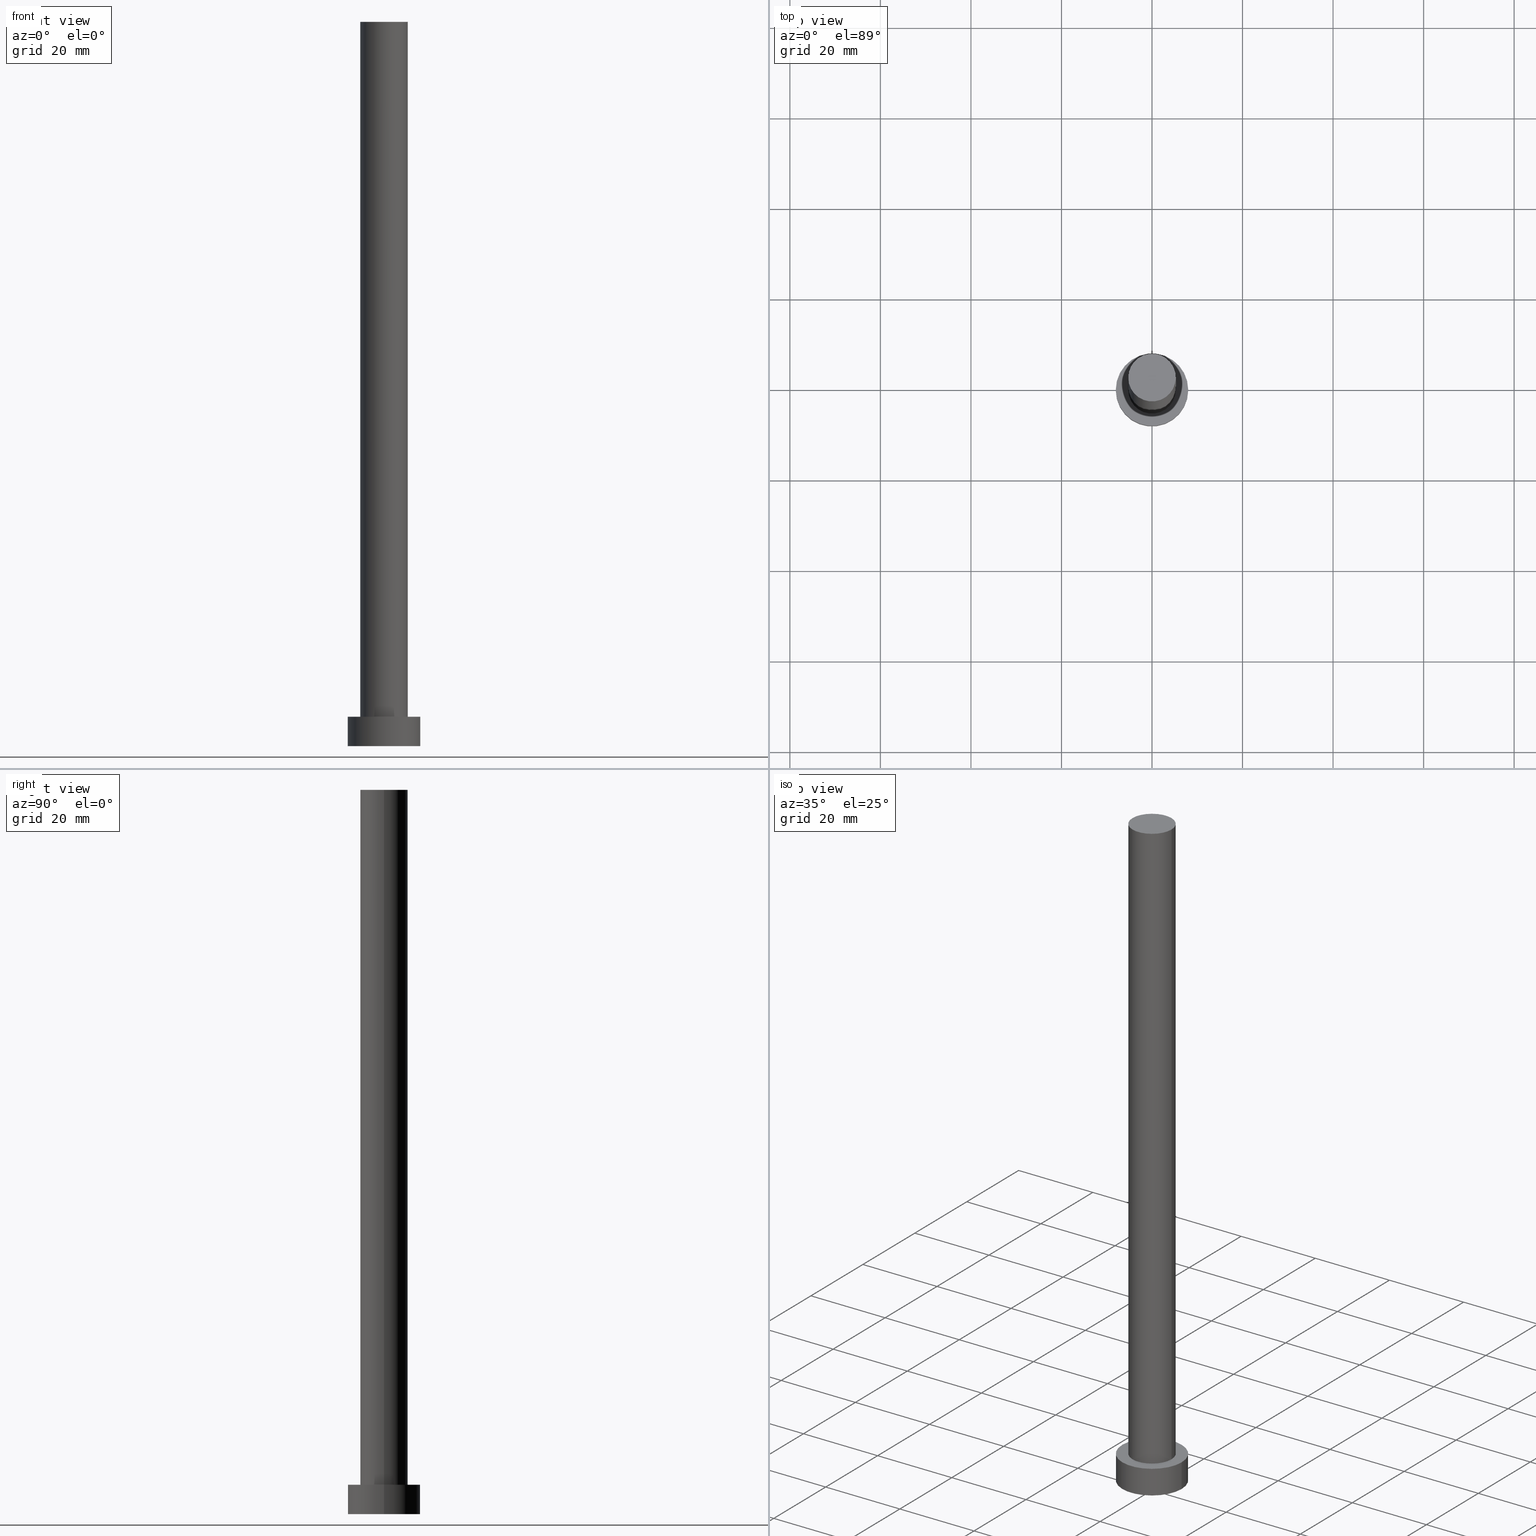
[diagram: canonical four-view strip — front | top / right | iso, engineering-drawing reading convention]
A machine part, canonical four-view strip (front | top / right | iso — engineering-drawing reading convention). The complete STEP part file that produces these views, byte-faithful:
ISO-10303-21;
HEADER;
FILE_DESCRIPTION (( 'STEP AP203' ),
    '1' );
FILE_NAME ('e3c2.STEP',
    '2023-02-13T12:22:39',
    ( '' ),
    ( '' ),
    'SwSTEP 2.0',
    'SolidWorks 2019',
    '' );
FILE_SCHEMA (( 'CONFIG_CONTROL_DESIGN' ));
ENDSEC;

DATA;
#1 = DATE_AND_TIME ( #236, #255 ) ;
#2 = CARTESIAN_POINT ( 'NONE',  ( 0.000000000000000000, 0.000000000000000000, 160.0000000000000000 ) ) ;
#3 = EDGE_CURVE ( 'NONE', #242, #116, #157, .T. ) ;
#4 = PERSON_AND_ORGANIZATION ( #52, #156 ) ;
#5 = DIRECTION ( 'NONE',  ( -0.000000000000000000, -0.000000000000000000, -1.000000000000000000 ) ) ;
#6 = DIRECTION ( 'NONE',  ( 1.000000000000000000, 0.000000000000000000, 0.000000000000000000 ) ) ;
#7 = PERSON_AND_ORGANIZATION ( #52, #156 ) ;
#8 = DIRECTION ( 'NONE',  ( 0.000000000000000000, 0.000000000000000000, 1.000000000000000000 ) ) ;
#9 = PRODUCT_DEFINITION ( 'NEZN�M�', '', #59, #121 ) ;
#10 = COORDINATED_UNIVERSAL_TIME_OFFSET ( 1, 0, .AHEAD. ) ;
#11 = CARTESIAN_POINT ( 'NONE',  ( -8.000000000000000000, 0.000000000000000000, 0.000000000000000000 ) ) ;
#12 = VERTEX_POINT ( 'NONE', #17 ) ;
#13 = DIRECTION ( 'NONE',  ( 0.000000000000000000, 0.000000000000000000, 1.000000000000000000 ) ) ;
#14 = AXIS2_PLACEMENT_3D ( 'NONE', #227, #66, #53 ) ;
#15 = COORDINATED_UNIVERSAL_TIME_OFFSET ( 1, 0, .AHEAD. ) ;
#16 = AXIS2_PLACEMENT_3D ( 'NONE', #94, #113, #106 ) ;
#17 = CARTESIAN_POINT ( 'NONE',  ( 5.250000000000000888, 6.429395695523605139E-16, 6.500000000000000000 ) ) ;
#18 = CARTESIAN_POINT ( 'NONE',  ( 0.000000000000000000, 0.000000000000000000, 160.0000000000000000 ) ) ;
#19 = VERTEX_POINT ( 'NONE', #120 ) ;
#20 = EDGE_CURVE ( 'NONE', #12, #144, #109, .T. ) ;
#21 = DIRECTION ( 'NONE',  ( 0.000000000000000000, 0.000000000000000000, 1.000000000000000000 ) ) ;
#22 = DATE_TIME_ROLE ( 'creation_date' ) ;
#23 = CARTESIAN_POINT ( 'NONE',  ( 8.000000000000000000, 9.797174393178823685E-16, 6.500000000000000000 ) ) ;
#24 = FACE_OUTER_BOUND ( 'NONE', #208, .T. ) ;
#25 = COORDINATED_UNIVERSAL_TIME_OFFSET ( 1, 0, .AHEAD. ) ;
#26 = AXIS2_PLACEMENT_3D ( 'NONE', #201, #27, #104 ) ;
#27 = DIRECTION ( 'NONE',  ( 0.000000000000000000, 0.000000000000000000, 1.000000000000000000 ) ) ;
#28 = ORIENTED_EDGE ( 'NONE', *, *, #211, .T. ) ;
#29 = AXIS2_PLACEMENT_3D ( 'NONE', #2, #99, #39 ) ;
#30 = PERSON_AND_ORGANIZATION ( #52, #156 ) ;
#31 = CC_DESIGN_PERSON_AND_ORGANIZATION_ASSIGNMENT ( #87, #203, ( #59 ) ) ;
#32 = AXIS2_PLACEMENT_3D ( 'NONE', #232, #137, #125 ) ;
#33 = CARTESIAN_POINT ( 'NONE',  ( 0.000000000000000000, 0.000000000000000000, 6.500000000000000000 ) ) ;
#34 = DATE_AND_TIME ( #250, #230 ) ;
#35 = ADVANCED_FACE ( 'NONE', ( #24 ), #179, .T. ) ;
#36 = APPROVAL_PERSON_ORGANIZATION ( #233, #129, #158 ) ;
#37 = ORIENTED_EDGE ( 'NONE', *, *, #220, .T. ) ;
#38 = ORIENTED_EDGE ( 'NONE', *, *, #225, .F. ) ;
#39 = DIRECTION ( 'NONE',  ( -1.000000000000000000, 0.000000000000000000, 0.000000000000000000 ) ) ;
#40 = CARTESIAN_POINT ( 'NONE',  ( 0.000000000000000000, 0.000000000000000000, 6.500000000000000000 ) ) ;
#41 = PRODUCT_RELATED_PRODUCT_CATEGORY ( 'detail', '', ( #199 ) ) ;
#42 = AXIS2_PLACEMENT_3D ( 'NONE', #183, #8, #79 ) ;
#43 = CARTESIAN_POINT ( 'NONE',  ( -5.250000000000000888, 0.000000000000000000, 6.500000000000000000 ) ) ;
#44 = CYLINDRICAL_SURFACE ( 'NONE', #32, 8.000000000000000000 ) ;
#45 = DIRECTION ( 'NONE',  ( 0.000000000000000000, 0.000000000000000000, 1.000000000000000000 ) ) ;
#46 = PERSON_AND_ORGANIZATION ( #52, #156 ) ;
#47 = DIRECTION ( 'NONE',  ( 1.000000000000000000, 0.000000000000000000, 0.000000000000000000 ) ) ;
#48 = EDGE_CURVE ( 'NONE', #242, #172, #197, .T. ) ;
#49 = AXIS2_PLACEMENT_3D ( 'NONE', #240, #64, #226 ) ;
#50 = AXIS2_PLACEMENT_3D ( 'NONE', #80, #136, #6 ) ;
#51 = ADVANCED_FACE ( 'NONE', ( #82 ), #196, .F. ) ;
#52 = PERSON ( 'NEUR�EN�', 'NEUR�EN�', 'NEUR�EN�', ('NEUR�EN�'), ('NEUR�EN�'), ('NEUR�EN�') ) ;
#53 = DIRECTION ( 'NONE',  ( 1.000000000000000000, 0.000000000000000000, -0.000000000000000000 ) ) ;
#54 = EDGE_LOOP ( 'NONE', ( #38, #246 ) ) ;
#55 = CARTESIAN_POINT ( 'NONE',  ( -8.000000000000000000, 0.000000000000000000, 6.500000000000000000 ) ) ;
#56 = ORIENTED_EDGE ( 'NONE', *, *, #151, .T. ) ;
#57 = ORIENTED_EDGE ( 'NONE', *, *, #48, .F. ) ;
#58 = FACE_OUTER_BOUND ( 'NONE', #74, .T. ) ;
#59 = PRODUCT_DEFINITION_FORMATION_WITH_SPECIFIED_SOURCE ( 'LIBOVOLN�', '', #199, .NOT_KNOWN. ) ;
#60 = APPROVAL_PERSON_ORGANIZATION ( #4, #165, #62 ) ;
#61 = CARTESIAN_POINT ( 'NONE',  ( 0.000000000000000000, 0.000000000000000000, 0.000000000000000000 ) ) ;
#62 = APPROVAL_ROLE ( '' ) ;
#63 = CARTESIAN_POINT ( 'NONE',  ( 8.000000000000000000, 9.797174393178823685E-16, 6.500000000000000000 ) ) ;
#64 = DIRECTION ( 'NONE',  ( 0.000000000000000000, 0.000000000000000000, 1.000000000000000000 ) ) ;
#65 = EDGE_CURVE ( 'NONE', #252, #172, #247, .T. ) ;
#66 = DIRECTION ( 'NONE',  ( 0.000000000000000000, 0.000000000000000000, 1.000000000000000000 ) ) ;
#67 = ORIENTED_EDGE ( 'NONE', *, *, #187, .T. ) ;
#68 = LOCAL_TIME ( 13, 22, 39.00000000000000000, #15 ) ;
#69 = AXIS2_PLACEMENT_3D ( 'NONE', #33, #111, #190 ) ;
#70 = APPROVAL_STATUS ( 'not_yet_approved' ) ;
#71 = LINE ( 'NONE', #63, #177 ) ;
#72 = ORIENTED_EDGE ( 'NONE', *, *, #48, .T. ) ;
#73 =( LENGTH_UNIT ( ) NAMED_UNIT ( * ) SI_UNIT ( .MILLI., .METRE. ) );
#74 = EDGE_LOOP ( 'NONE', ( #146, #67, #118, #57 ) ) ;
#75 = VECTOR ( 'NONE', #5, 1000.000000000000000 ) ;
#76 = APPROVAL ( #70, 'NEUR�EN�' ) ;
#77 = ORIENTED_EDGE ( 'NONE', *, *, #151, .F. ) ;
#78 =( NAMED_UNIT ( * ) SI_UNIT ( $, .STERADIAN. ) SOLID_ANGLE_UNIT ( ) );
#79 = DIRECTION ( 'NONE',  ( 1.000000000000000000, 0.000000000000000000, 0.000000000000000000 ) ) ;
#80 = CARTESIAN_POINT ( 'NONE',  ( 0.000000000000000000, 0.000000000000000000, 6.500000000000000000 ) ) ;
#81 = CALENDAR_DATE ( 2023, 13, 2 ) ;
#82 = FACE_OUTER_BOUND ( 'NONE', #54, .T. ) ;
#83 = SECURITY_CLASSIFICATION ( '', '', #103 ) ;
#84 = CARTESIAN_POINT ( 'NONE',  ( 5.250000000000000888, 6.429395695523605139E-16, 160.0000000000000000 ) ) ;
#85 = EDGE_CURVE ( 'NONE', #19, #12, #101, .T. ) ;
#86 = APPLICATION_CONTEXT ( 'configuration controlled 3d designs of mechanical parts and assemblies' ) ;
#87 = PERSON_AND_ORGANIZATION ( #52, #156 ) ;
#88 = COORDINATED_UNIVERSAL_TIME_OFFSET ( 1, 0, .AHEAD. ) ;
#89 = CC_DESIGN_DATE_AND_TIME_ASSIGNMENT ( #34, #191, ( #83 ) ) ;
#90 = DIRECTION ( 'NONE',  ( -0.000000000000000000, -0.000000000000000000, -1.000000000000000000 ) ) ;
#91 = AXIS2_PLACEMENT_3D ( 'NONE', #175, #237, #231 ) ;
#92 = PERSON_AND_ORGANIZATION ( #52, #156 ) ;
#93 = AXIS2_PLACEMENT_3D ( 'NONE', #241, #13, #47 ) ;
#94 = CARTESIAN_POINT ( 'NONE',  ( 0.000000000000000000, 0.000000000000000000, 160.0000000000000000 ) ) ;
#95 = VERTEX_POINT ( 'NONE', #159 ) ;
#96 = DIRECTION ( 'NONE',  ( -0.000000000000000000, -0.000000000000000000, -1.000000000000000000 ) ) ;
#97 = LOCAL_TIME ( 13, 22, 39.00000000000000000, #88 ) ;
#98 = ORIENTED_EDGE ( 'NONE', *, *, #110, .T. ) ;
#99 = DIRECTION ( 'NONE',  ( -0.000000000000000000, -0.000000000000000000, -1.000000000000000000 ) ) ;
#100 = ADVANCED_FACE ( 'NONE', ( #58 ), #239, .T. ) ;
#101 = LINE ( 'NONE', #84, #169 ) ;
#102 = CIRCLE ( 'NONE', #245, 8.000000000000000000 ) ;
#103 = SECURITY_CLASSIFICATION_LEVEL ( 'unclassified' ) ;
#104 = DIRECTION ( 'NONE',  ( 1.000000000000000000, 0.000000000000000000, 0.000000000000000000 ) ) ;
#105 = PERSON_AND_ORGANIZATION_ROLE ( 'classification_officer' ) ;
#106 = DIRECTION ( 'NONE',  ( 1.000000000000000000, 0.000000000000000000, -0.000000000000000000 ) ) ;
#107 = CIRCLE ( 'NONE', #194, 5.250000000000000888 ) ;
#108 = DATE_AND_TIME ( #221, #68 ) ;
#109 = CIRCLE ( 'NONE', #50, 5.250000000000000888 ) ;
#110 = EDGE_CURVE ( 'NONE', #116, #242, #102, .T. ) ;
#111 = DIRECTION ( 'NONE',  ( 0.000000000000000000, 0.000000000000000000, 1.000000000000000000 ) ) ;
#112 =( GEOMETRIC_REPRESENTATION_CONTEXT ( 3 ) GLOBAL_UNCERTAINTY_ASSIGNED_CONTEXT ( ( #213 ) ) GLOBAL_UNIT_ASSIGNED_CONTEXT ( ( #73, #173, #78 ) ) REPRESENTATION_CONTEXT ( 'NONE', 'WORKASPACE' ) );
#113 = DIRECTION ( 'NONE',  ( 0.000000000000000000, 0.000000000000000000, 1.000000000000000000 ) ) ;
#114 = EDGE_LOOP ( 'NONE', ( #189, #166, #72, #161 ) ) ;
#115 = PRODUCT_DEFINITION_SHAPE ( 'NONE', 'NONE',  #9 ) ;
#116 = VERTEX_POINT ( 'NONE', #23 ) ;
#117 = CYLINDRICAL_SURFACE ( 'NONE', #139, 5.250000000000000888 ) ;
#118 = ORIENTED_EDGE ( 'NONE', *, *, #65, .T. ) ;
#119 = APPROVAL_PERSON_ORGANIZATION ( #92, #76, #168 ) ;
#120 = CARTESIAN_POINT ( 'NONE',  ( 5.250000000000000888, 6.429395695523605139E-16, 160.0000000000000000 ) ) ;
#121 = DESIGN_CONTEXT ( 'detailed design', #145, 'design' ) ;
#122 = PERSON_AND_ORGANIZATION_ROLE ( 'creator' ) ;
#123 = CARTESIAN_POINT ( 'NONE',  ( -5.250000000000000888, 0.000000000000000000, 160.0000000000000000 ) ) ;
#124 = CC_DESIGN_PERSON_AND_ORGANIZATION_ASSIGNMENT ( #140, #160, ( #9 ) ) ;
#125 = DIRECTION ( 'NONE',  ( -1.000000000000000000, 0.000000000000000000, 0.000000000000000000 ) ) ;
#126 = APPROVAL_DATE_TIME ( #238, #129 ) ;
#127 = DIRECTION ( 'NONE',  ( 1.000000000000000000, 0.000000000000000000, 0.000000000000000000 ) ) ;
#128 = APPLICATION_PROTOCOL_DEFINITION ( 'international standard', 'config_control_design', 1994, #145 ) ;
#129 = APPROVAL ( #180, 'NEUR�EN�' ) ;
#130 = CARTESIAN_POINT ( 'NONE',  ( 0.000000000000000000, 0.000000000000000000, 6.500000000000000000 ) ) ;
#131 = CC_DESIGN_SECURITY_CLASSIFICATION ( #83, ( #59 ) ) ;
#132 = ORIENTED_EDGE ( 'NONE', *, *, #220, .F. ) ;
#133 = EDGE_LOOP ( 'NONE', ( #150, #209 ) ) ;
#134 = CC_DESIGN_PERSON_AND_ORGANIZATION_ASSIGNMENT ( #30, #105, ( #83 ) ) ;
#135 = ADVANCED_FACE ( 'NONE', ( #200 ), #44, .T. ) ;
#136 = DIRECTION ( 'NONE',  ( 0.000000000000000000, 0.000000000000000000, 1.000000000000000000 ) ) ;
#137 = DIRECTION ( 'NONE',  ( -0.000000000000000000, -0.000000000000000000, -1.000000000000000000 ) ) ;
#138 = DIRECTION ( 'NONE',  ( -0.000000000000000000, -0.000000000000000000, -1.000000000000000000 ) ) ;
#139 = AXIS2_PLACEMENT_3D ( 'NONE', #18, #96, #174 ) ;
#140 = PERSON_AND_ORGANIZATION ( #52, #156 ) ;
#141 = DIRECTION ( 'NONE',  ( -1.000000000000000000, 0.000000000000000000, 0.000000000000000000 ) ) ;
#142 = COORDINATED_UNIVERSAL_TIME_OFFSET ( 1, 0, .AHEAD. ) ;
#143 = ORIENTED_EDGE ( 'NONE', *, *, #85, .T. ) ;
#144 = VERTEX_POINT ( 'NONE', #43 ) ;
#145 = APPLICATION_CONTEXT ( 'configuration controlled 3d designs of mechanical parts and assemblies' ) ;
#146 = ORIENTED_EDGE ( 'NONE', *, *, #110, .F. ) ;
#147 = PLANE ( 'NONE',  #14 ) ;
#148 = CLOSED_SHELL ( 'NONE', ( #35, #100, #135, #205, #51, #254, #170 ) ) ;
#149 = EDGE_LOOP ( 'NONE', ( #207, #171, #56, #28 ) ) ;
#150 = ORIENTED_EDGE ( 'NONE', *, *, #211, .F. ) ;
#151 = EDGE_CURVE ( 'NONE', #95, #144, #214, .T. ) ;
#152 = CARTESIAN_POINT ( 'NONE',  ( 0.000000000000000000, 0.000000000000000000, 6.500000000000000000 ) ) ;
#153 = ADVANCED_BREP_SHAPE_REPRESENTATION ( 'e3c2', ( #222, #49 ), #112 ) ;
#154 = DIRECTION ( 'NONE',  ( 0.000000000000000000, 0.000000000000000000, 1.000000000000000000 ) ) ;
#155 = DIRECTION ( 'NONE',  ( -0.000000000000000000, -0.000000000000000000, -1.000000000000000000 ) ) ;
#156 = ORGANIZATION ( 'NEUR�EN�', 'NEUR�EN�', '' ) ;
#157 = CIRCLE ( 'NONE', #69, 8.000000000000000000 ) ;
#158 = APPROVAL_ROLE ( '' ) ;
#159 = CARTESIAN_POINT ( 'NONE',  ( -5.250000000000000888, 0.000000000000000000, 160.0000000000000000 ) ) ;
#160 = PERSON_AND_ORGANIZATION_ROLE ( 'creator' ) ;
#161 = ORIENTED_EDGE ( 'NONE', *, *, #225, .T. ) ;
#162 = CC_DESIGN_APPROVAL ( #76, ( #83 ) ) ;
#163 = FACE_OUTER_BOUND ( 'NONE', #164, .T. ) ;
#164 = EDGE_LOOP ( 'NONE', ( #204, #98 ) ) ;
#165 = APPROVAL ( #215, 'NEUR�EN�' ) ;
#166 = ORIENTED_EDGE ( 'NONE', *, *, #3, .F. ) ;
#167 = CIRCLE ( 'NONE', #42, 8.000000000000000000 ) ;
#168 = APPROVAL_ROLE ( '' ) ;
#169 = VECTOR ( 'NONE', #176, 1000.000000000000000 ) ;
#170 = ADVANCED_FACE ( 'NONE', ( #234 ), #186, .T. ) ;
#171 = ORIENTED_EDGE ( 'NONE', *, *, #184, .F. ) ;
#172 = VERTEX_POINT ( 'NONE', #11 ) ;
#173 =( NAMED_UNIT ( * ) PLANE_ANGLE_UNIT ( ) SI_UNIT ( $, .RADIAN. ) );
#174 = DIRECTION ( 'NONE',  ( -1.000000000000000000, 0.000000000000000000, 0.000000000000000000 ) ) ;
#175 = CARTESIAN_POINT ( 'NONE',  ( 0.000000000000000000, 0.000000000000000000, 0.000000000000000000 ) ) ;
#176 = DIRECTION ( 'NONE',  ( -0.000000000000000000, -0.000000000000000000, -1.000000000000000000 ) ) ;
#177 = VECTOR ( 'NONE', #90, 1000.000000000000000 ) ;
#178 = CC_DESIGN_PERSON_AND_ORGANIZATION_ASSIGNMENT ( #46, #198, ( #199 ) ) ;
#179 = CYLINDRICAL_SURFACE ( 'NONE', #29, 5.250000000000000888 ) ;
#180 = APPROVAL_STATUS ( 'not_yet_approved' ) ;
#181 = CARTESIAN_POINT ( 'NONE',  ( -8.000000000000000000, 0.000000000000000000, 6.500000000000000000 ) ) ;
#182 = APPROVAL_DATE_TIME ( #1, #165 ) ;
#183 = CARTESIAN_POINT ( 'NONE',  ( 0.000000000000000000, 0.000000000000000000, 0.000000000000000000 ) ) ;
#184 = EDGE_CURVE ( 'NONE', #95, #19, #228, .T. ) ;
#185 = CALENDAR_DATE ( 2023, 13, 2 ) ;
#186 = PLANE ( 'NONE',  #16 ) ;
#187 = EDGE_CURVE ( 'NONE', #116, #252, #71, .T. ) ;
#188 = VECTOR ( 'NONE', #155, 1000.000000000000000 ) ;
#189 = ORIENTED_EDGE ( 'NONE', *, *, #187, .F. ) ;
#190 = DIRECTION ( 'NONE',  ( 1.000000000000000000, 0.000000000000000000, 0.000000000000000000 ) ) ;
#191 = DATE_TIME_ROLE ( 'classification_date' ) ;
#192 = ORIENTED_EDGE ( 'NONE', *, *, #20, .T. ) ;
#193 = FACE_OUTER_BOUND ( 'NONE', #149, .T. ) ;
#194 = AXIS2_PLACEMENT_3D ( 'NONE', #130, #45, #127 ) ;
#195 = CARTESIAN_POINT ( 'NONE',  ( 8.000000000000000000, 9.797174393178823685E-16, 0.000000000000000000 ) ) ;
#196 = PLANE ( 'NONE',  #91 ) ;
#197 = LINE ( 'NONE', #181, #75 ) ;
#198 = PERSON_AND_ORGANIZATION_ROLE ( 'design_owner' ) ;
#199 = PRODUCT ( 'e3c2', 'e3c2', '', ( #224 ) ) ;
#200 = FACE_OUTER_BOUND ( 'NONE', #114, .T. ) ;
#201 = CARTESIAN_POINT ( 'NONE',  ( 0.000000000000000000, 0.000000000000000000, 160.0000000000000000 ) ) ;
#202 = LOCAL_TIME ( 13, 22, 39.00000000000000000, #25 ) ;
#203 = PERSON_AND_ORGANIZATION_ROLE ( 'design_supplier' ) ;
#204 = ORIENTED_EDGE ( 'NONE', *, *, #3, .T. ) ;
#205 = ADVANCED_FACE ( 'NONE', ( #218, #163 ), #147, .T. ) ;
#206 = CC_DESIGN_APPROVAL ( #165, ( #9 ) ) ;
#207 = ORIENTED_EDGE ( 'NONE', *, *, #85, .F. ) ;
#208 = EDGE_LOOP ( 'NONE', ( #132, #143, #192, #77 ) ) ;
#209 = ORIENTED_EDGE ( 'NONE', *, *, #20, .F. ) ;
#210 = AXIS2_PLACEMENT_3D ( 'NONE', #152, #138, #141 ) ;
#211 = EDGE_CURVE ( 'NONE', #144, #12, #107, .T. ) ;
#212 = CC_DESIGN_DATE_AND_TIME_ASSIGNMENT ( #219, #22, ( #9 ) ) ;
#213 = UNCERTAINTY_MEASURE_WITH_UNIT (LENGTH_MEASURE( 1.000000000000000082E-05 ), #73, 'distance_accuracy_value', 'NONE');
#214 = LINE ( 'NONE', #123, #188 ) ;
#215 = APPROVAL_STATUS ( 'not_yet_approved' ) ;
#216 = CIRCLE ( 'NONE', #26, 5.250000000000000888 ) ;
#217 = DIRECTION ( 'NONE',  ( 1.000000000000000000, 0.000000000000000000, 0.000000000000000000 ) ) ;
#218 = FACE_BOUND ( 'NONE', #133, .T. ) ;
#219 = DATE_AND_TIME ( #81, #202 ) ;
#220 = EDGE_CURVE ( 'NONE', #19, #95, #216, .T. ) ;
#221 = CALENDAR_DATE ( 2023, 13, 2 ) ;
#222 = MANIFOLD_SOLID_BREP ( 'P�idat vysunut�m3', #148 ) ;
#223 = APPROVAL_DATE_TIME ( #108, #76 ) ;
#224 = MECHANICAL_CONTEXT ( 'NONE', #86, 'mechanical' ) ;
#225 = EDGE_CURVE ( 'NONE', #172, #252, #167, .T. ) ;
#226 = DIRECTION ( 'NONE',  ( 1.000000000000000000, 0.000000000000000000, 0.000000000000000000 ) ) ;
#227 = CARTESIAN_POINT ( 'NONE',  ( 0.000000000000000000, 0.000000000000000000, 6.500000000000000000 ) ) ;
#228 = CIRCLE ( 'NONE', #93, 5.250000000000000888 ) ;
#229 = AXIS2_PLACEMENT_3D ( 'NONE', #61, #21, #253 ) ;
#230 = LOCAL_TIME ( 13, 22, 39.00000000000000000, #10 ) ;
#231 = DIRECTION ( 'NONE',  ( 1.000000000000000000, 0.000000000000000000, -0.000000000000000000 ) ) ;
#232 = CARTESIAN_POINT ( 'NONE',  ( 0.000000000000000000, 0.000000000000000000, 6.500000000000000000 ) ) ;
#233 = PERSON_AND_ORGANIZATION ( #52, #156 ) ;
#234 = FACE_OUTER_BOUND ( 'NONE', #244, .T. ) ;
#235 = CC_DESIGN_APPROVAL ( #129, ( #59 ) ) ;
#236 = CALENDAR_DATE ( 2023, 13, 2 ) ;
#237 = DIRECTION ( 'NONE',  ( 0.000000000000000000, 0.000000000000000000, 1.000000000000000000 ) ) ;
#238 = DATE_AND_TIME ( #185, #97 ) ;
#239 = CYLINDRICAL_SURFACE ( 'NONE', #210, 8.000000000000000000 ) ;
#240 = CARTESIAN_POINT ( 'NONE',  ( 0.000000000000000000, 0.000000000000000000, 0.000000000000000000 ) ) ;
#241 = CARTESIAN_POINT ( 'NONE',  ( 0.000000000000000000, 0.000000000000000000, 160.0000000000000000 ) ) ;
#242 = VERTEX_POINT ( 'NONE', #55 ) ;
#243 = CC_DESIGN_PERSON_AND_ORGANIZATION_ASSIGNMENT ( #7, #122, ( #59 ) ) ;
#244 = EDGE_LOOP ( 'NONE', ( #249, #37 ) ) ;
#245 = AXIS2_PLACEMENT_3D ( 'NONE', #40, #154, #217 ) ;
#246 = ORIENTED_EDGE ( 'NONE', *, *, #65, .F. ) ;
#247 = CIRCLE ( 'NONE', #229, 8.000000000000000000 ) ;
#248 = SHAPE_DEFINITION_REPRESENTATION ( #115, #153 ) ;
#249 = ORIENTED_EDGE ( 'NONE', *, *, #184, .T. ) ;
#250 = CALENDAR_DATE ( 2023, 13, 2 ) ;
#251 = APPLICATION_PROTOCOL_DEFINITION ( 'international standard', 'config_control_design', 1994, #86 ) ;
#252 = VERTEX_POINT ( 'NONE', #195 ) ;
#253 = DIRECTION ( 'NONE',  ( 1.000000000000000000, 0.000000000000000000, 0.000000000000000000 ) ) ;
#254 = ADVANCED_FACE ( 'NONE', ( #193 ), #117, .T. ) ;
#255 = LOCAL_TIME ( 13, 22, 39.00000000000000000, #142 ) ;
ENDSEC;
END-ISO-10303-21;
